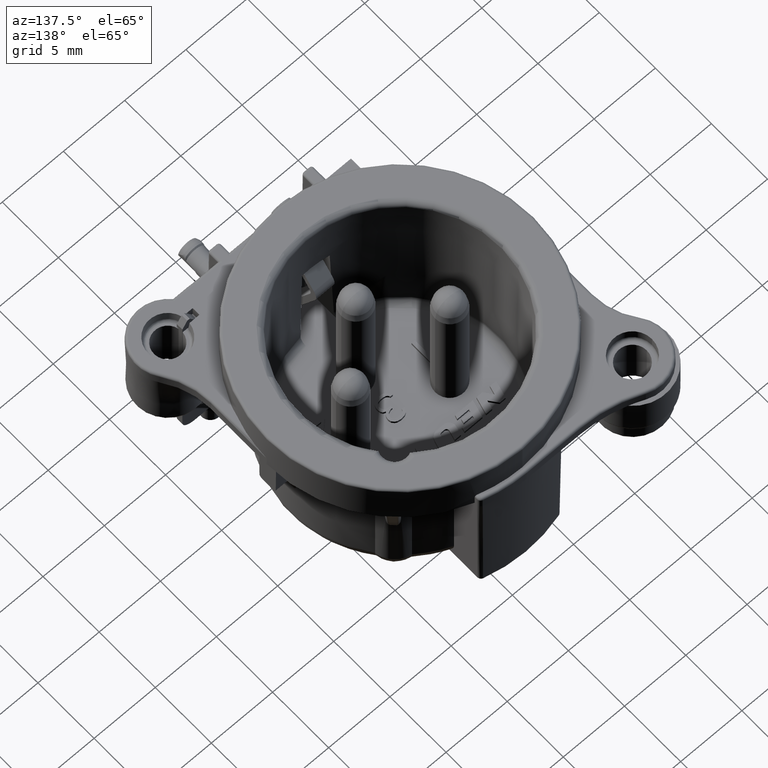
[diagram: clean part render]
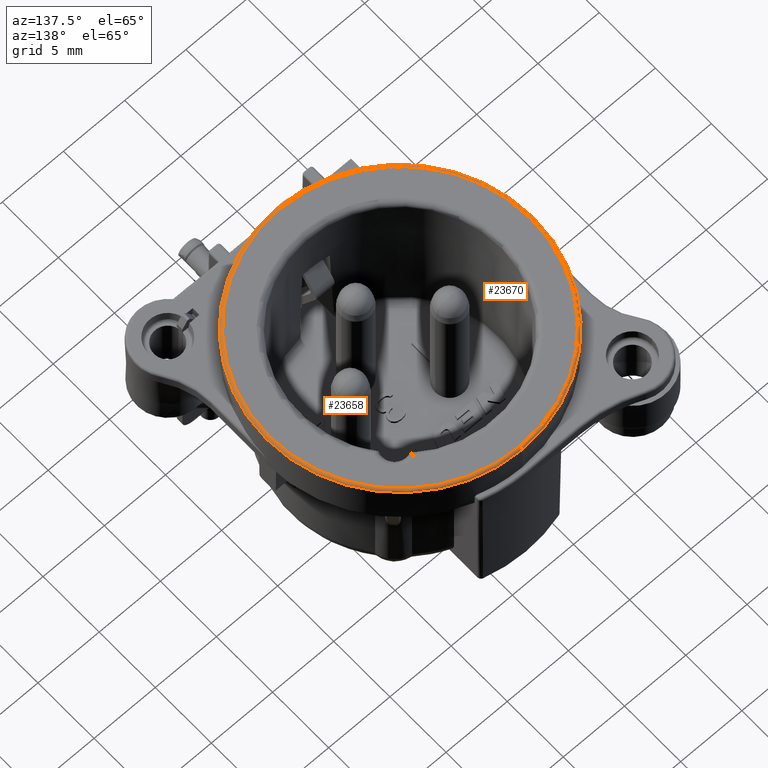
[diagram: same view with one multi-face feature highlighted, each face labeled with its STEP entity id]
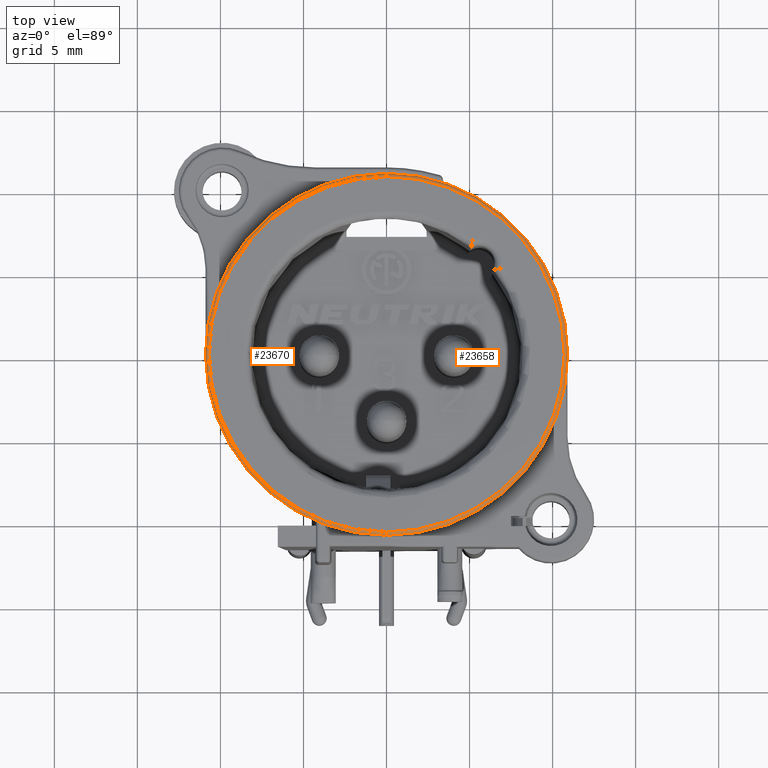
[diagram: same view with one multi-face feature highlighted, each face labeled with its STEP entity id]
A machine part, auxiliary view. The highlighted faces form ONE feature: a constant-radius fillet chain: 2 tangent blend faces with common blend radius 0.2 mm. The faces share edges in the B-rep.
A second angle (top view) of the same feature is appended — it is thin or edge-on in the first view.
Their STEP definitions:
[1] entity #23658 (Torus):
#8055=CARTESIAN_POINT('',(0.E0,0.E0,2.7E0));
#8056=DIRECTION('',(0.E0,0.E0,-1.E0));
#8057=DIRECTION('',(0.E0,1.E0,0.E0));
#8058=AXIS2_PLACEMENT_3D('',#8055,#8056,#8057);
#8075=CARTESIAN_POINT('',(0.E0,0.E0,2.5E0));
#8076=DIRECTION('',(0.E0,0.E0,-1.E0));
#8077=DIRECTION('',(0.E0,1.E0,0.E0));
#8078=AXIS2_PLACEMENT_3D('',#8075,#8076,#8077);
#8080=CARTESIAN_POINT('',(0.E0,1.07E1,2.5E0));
#8081=DIRECTION('',(1.E0,0.E0,0.E0));
#8082=DIRECTION('',(0.E0,1.E0,0.E0));
#8083=AXIS2_PLACEMENT_3D('',#8080,#8081,#8082);
#8085=CARTESIAN_POINT('',(0.E0,-1.07E1,2.5E0));
#8086=DIRECTION('',(-1.E0,0.E0,0.E0));
#8087=DIRECTION('',(0.E0,-1.E0,0.E0));
#8088=AXIS2_PLACEMENT_3D('',#8085,#8086,#8087);
#11100=CARTESIAN_POINT('',(0.E0,1.09E1,2.5E0));
#11102=VERTEX_POINT('',#11100);
#11103=CARTESIAN_POINT('',(0.E0,1.07E1,2.7E0));
#11104=VERTEX_POINT('',#11103);
#11105=CARTESIAN_POINT('',(0.E0,-1.09E1,2.5E0));
#11106=CARTESIAN_POINT('',(0.E0,-1.07E1,2.7E0));
#11107=VERTEX_POINT('',#11105);
#11108=VERTEX_POINT('',#11106);
#23645=CARTESIAN_POINT('',(0.E0,0.E0,2.5E0));
#23646=DIRECTION('',(0.E0,0.E0,-1.E0));
#23647=DIRECTION('',(0.E0,-1.E0,0.E0));
#23648=AXIS2_PLACEMENT_3D('',#23645,#23646,#23647);
#23649=TOROIDAL_SURFACE('',#23648,1.07E1,2.E-1);
#23651=ORIENTED_EDGE('',*,*,#23650,.F.);
#23652=ORIENTED_EDGE('',*,*,#15302,.T.);
#23654=ORIENTED_EDGE('',*,*,#23653,.T.);
#23655=ORIENTED_EDGE('',*,*,#23633,.F.);
#23656=EDGE_LOOP('',(#23651,#23652,#23654,#23655));
#23657=FACE_OUTER_BOUND('',#23656,.F.);
#23658=ADVANCED_FACE('',(#23657),#23649,.T.);
#8059=CIRCLE('',#8058,1.07E1);
#8079=CIRCLE('',#8078,1.09E1);
#8084=CIRCLE('',#8083,2.E-1);
#8089=CIRCLE('',#8088,2.E-1);
#15302=EDGE_CURVE('',#11102,#11107,#8079,.T.);
#23633=EDGE_CURVE('',#11104,#11108,#8059,.T.);
#23650=EDGE_CURVE('',#11102,#11104,#8084,.T.);
#23653=EDGE_CURVE('',#11107,#11108,#8089,.T.);
[2] entity #23670 (Torus):
#8060=CARTESIAN_POINT('',(0.E0,0.E0,2.7E0));
#8061=DIRECTION('',(0.E0,0.E0,1.E0));
#8062=DIRECTION('',(0.E0,1.E0,0.E0));
#8063=AXIS2_PLACEMENT_3D('',#8060,#8061,#8062);
#8080=CARTESIAN_POINT('',(0.E0,1.07E1,2.5E0));
#8081=DIRECTION('',(1.E0,0.E0,0.E0));
#8082=DIRECTION('',(0.E0,1.E0,0.E0));
#8083=AXIS2_PLACEMENT_3D('',#8080,#8081,#8082);
#8085=CARTESIAN_POINT('',(0.E0,-1.07E1,2.5E0));
#8086=DIRECTION('',(-1.E0,0.E0,0.E0));
#8087=DIRECTION('',(0.E0,-1.E0,0.E0));
#8088=AXIS2_PLACEMENT_3D('',#8085,#8086,#8087);
#8090=CARTESIAN_POINT('',(0.E0,0.E0,2.5E0));
#8091=DIRECTION('',(0.E0,0.E0,1.E0));
#8092=DIRECTION('',(0.E0,1.E0,0.E0));
#8093=AXIS2_PLACEMENT_3D('',#8090,#8091,#8092);
#11100=CARTESIAN_POINT('',(0.E0,1.09E1,2.5E0));
#11102=VERTEX_POINT('',#11100);
#11103=CARTESIAN_POINT('',(0.E0,1.07E1,2.7E0));
#11104=VERTEX_POINT('',#11103);
#11105=CARTESIAN_POINT('',(0.E0,-1.09E1,2.5E0));
#11106=CARTESIAN_POINT('',(0.E0,-1.07E1,2.7E0));
#11107=VERTEX_POINT('',#11105);
#11108=VERTEX_POINT('',#11106);
#23659=CARTESIAN_POINT('',(0.E0,0.E0,2.5E0));
#23660=DIRECTION('',(0.E0,0.E0,-1.E0));
#23661=DIRECTION('',(0.E0,-1.E0,0.E0));
#23662=AXIS2_PLACEMENT_3D('',#23659,#23660,#23661);
#23663=TOROIDAL_SURFACE('',#23662,1.07E1,2.E-1);
#23664=ORIENTED_EDGE('',*,*,#23650,.T.);
#23665=ORIENTED_EDGE('',*,*,#23635,.T.);
#23666=ORIENTED_EDGE('',*,*,#23653,.F.);
#23667=ORIENTED_EDGE('',*,*,#18969,.F.);
#23668=EDGE_LOOP('',(#23664,#23665,#23666,#23667));
#23669=FACE_OUTER_BOUND('',#23668,.F.);
#23670=ADVANCED_FACE('',(#23669),#23663,.T.);
#8064=CIRCLE('',#8063,1.07E1);
#8084=CIRCLE('',#8083,2.E-1);
#8089=CIRCLE('',#8088,2.E-1);
#8094=CIRCLE('',#8093,1.09E1);
#18969=EDGE_CURVE('',#11102,#11107,#8094,.T.);
#23635=EDGE_CURVE('',#11104,#11108,#8064,.T.);
#23650=EDGE_CURVE('',#11102,#11104,#8084,.T.);
#23653=EDGE_CURVE('',#11107,#11108,#8089,.T.);